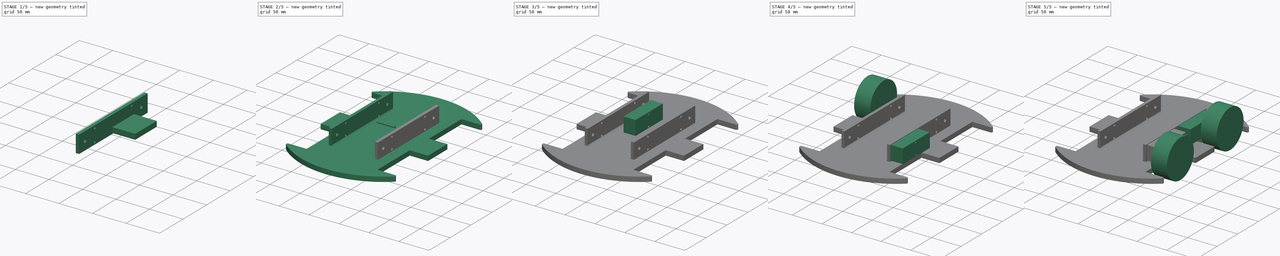
[diagram: build sequence overview — one tinted view per stage of 5, left to right]
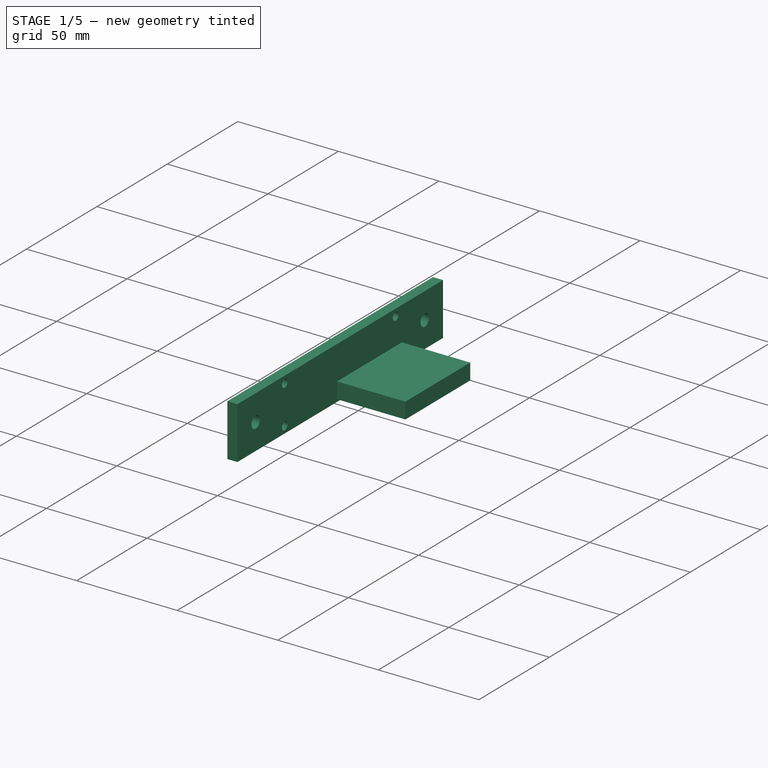
[diagram: stage 1 of 5 — iso view after this stage's code; geometry added in this stage tinted green]
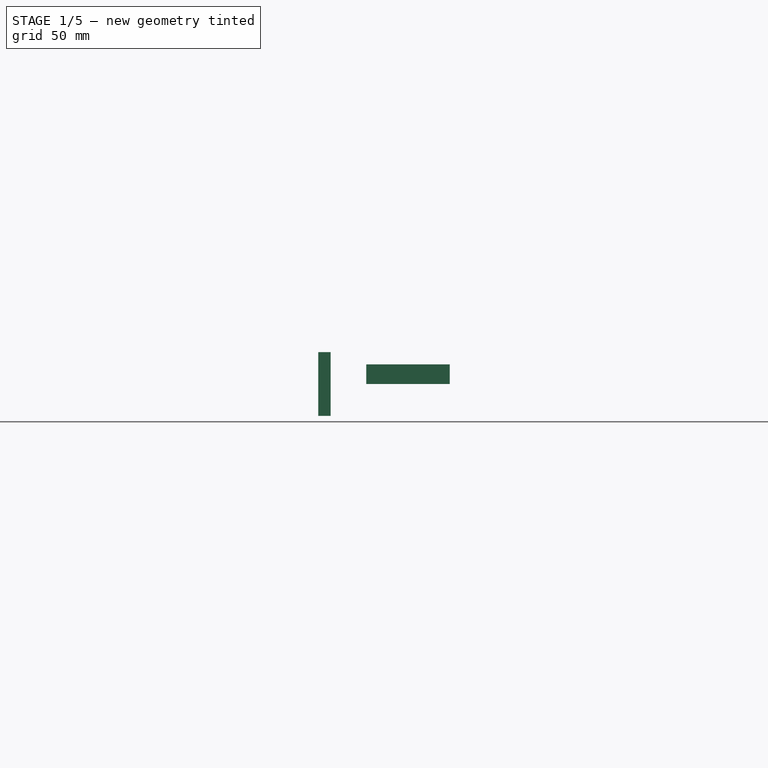
[diagram: stage 1 of 5 — front view after this stage's code; geometry added in this stage tinted green]
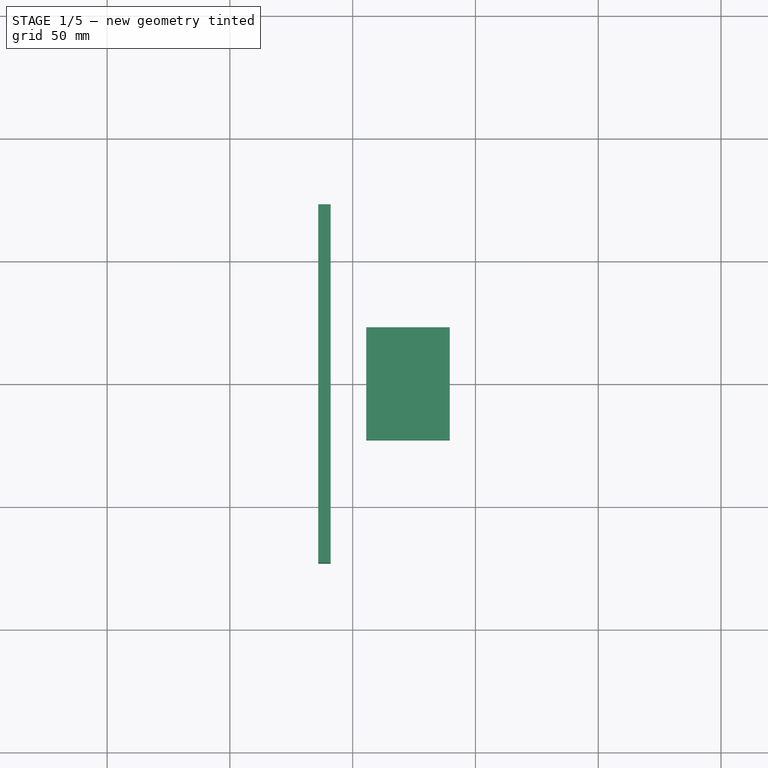
[diagram: stage 1 of 5 — top view after this stage's code; geometry added in this stage tinted green]
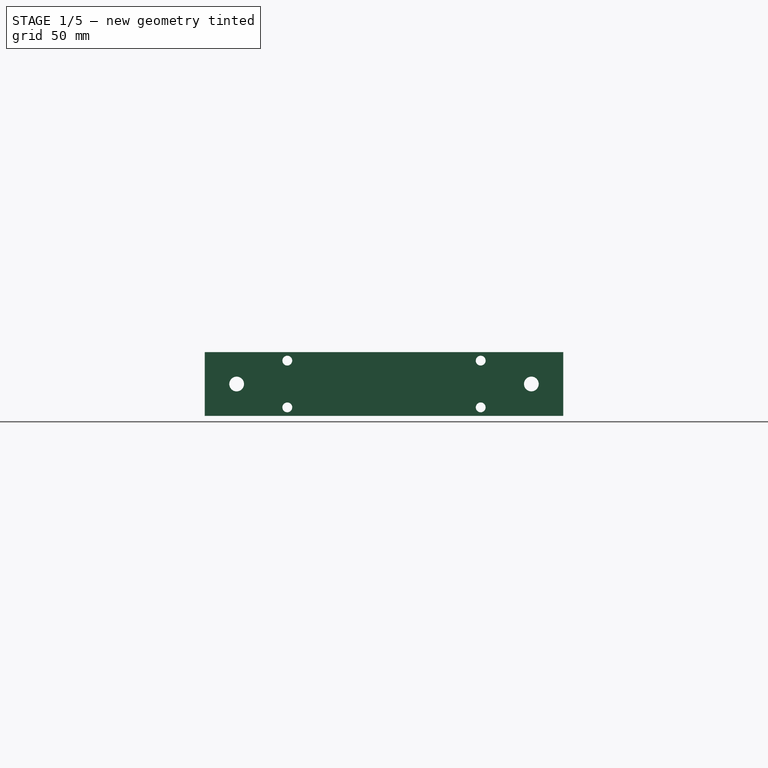
[diagram: stage 1 of 5 — right view after this stage's code; geometry added in this stage tinted green]
FCSTD DOCUMENT  (FreeCAD 0.19R24291 (Git))
Label: chasis
License: All rights reserved
LicenseURL: http://en.wikipedia.org/wiki/All_rights_reserved
objects: Part::Mirroring×9, Sketcher::SketchObject×4, Part::Cylinder×3, Part::MultiFuse×3, Part::Extrusion×3, Part::Cut×2, Part::Box×1, Part::Chamfer×1
note: 26 computed .brp shape members not serialized (recipe doc carries the construction recipe); baked Part::Feature solids carry a one-line shape summary decoded from their .brp

FEATURE [Sketcher::SketchObject] Sketch002  label="sk_rectangulo_medio"
  FullyConstrained = false
  sketch-geometry (4):
    g0: LineSegment StartX=-89.5216 StartY=23 StartZ=0 EndX=-55.5216 EndY=23 EndZ=0
    g1: LineSegment StartX=-55.5216 StartY=23 StartZ=0 EndX=-55.5216 EndY=-23 EndZ=0
    g2: LineSegment StartX=-55.5216 StartY=-23 StartZ=0 EndX=-89.5216 EndY=-23 EndZ=0
    g3: LineSegment StartX=-89.5216 StartY=-23 StartZ=0 EndX=-89.5216 EndY=23 EndZ=0
  constraints (10):
    c: Coincident(g0,g1)
    c: Coincident(g1,g2)
    c: Coincident(g2,g3)
    c: Coincident(g3,g0)
    c: Horizontal(g0)
    c: Horizontal(g2)
    c: Vertical(g1)
    c: DistanceX(g0,g0) = 34
    c: Symmetric(g0,g2,g-1)
    c: DistanceY(g3,g3) = 46
FEATURE [Part::Extrusion] Extrude001  label="rectangulo_medio"
  Base = -> Sketch002
  Dir = (0,0,1)
  DirMode = 2
  FaceMakerClass = Part::FaceMakerBullseye
  LengthFwd = 8
  LengthRev = 0
  Solid = true
  Symmetric = false
FEATURE [Part::Mirroring] Part__Mirroring007  label="rectangulo_medio (Mirror #8)"
  Base = (0,0,0)
  Normal = (1,0,0)
  Source = -> Extrude001
FEATURE [Sketcher::SketchObject] Sketch003  label="sk_Union_motor_chasis"
  FullyConstrained = true
  Placement = pos=(0,0,0) rot=(0.57735,0.57735,0.57735;2.0944rad)
  sketch-geometry (10):
    g0: LineSegment StartX=-73 StartY=13 StartZ=0 EndX=73 EndY=13 EndZ=0
    g1: LineSegment StartX=73 StartY=13 StartZ=0 EndX=73 EndY=-13 EndZ=0
    g2: LineSegment StartX=73 StartY=-13 StartZ=0 EndX=-73 EndY=-13 EndZ=0
    g3: LineSegment StartX=-73 StartY=-13 StartZ=0 EndX=-73 EndY=13 EndZ=0
    g4: Circle CenterX=-60.01 CenterY=0 CenterZ=0 NormalX=0 NormalY=0 NormalZ=1 AngleXU=0 Radius=3
    g5: Circle CenterX=-39.38 CenterY=9.52 CenterZ=0 NormalX=0 NormalY=0 NormalZ=1 AngleXU=0 Radius=2
    g6: Circle CenterX=-39.38 CenterY=-9.52 CenterZ=0 NormalX=0 NormalY=0 NormalZ=1 AngleXU=0 Radius=2
    g7: Circle CenterX=60.01 CenterY=0 CenterZ=0 NormalX=0 NormalY=0 NormalZ=1 AngleXU=0 Radius=3
    g8: Circle CenterX=39.38 CenterY=9.52 CenterZ=0 NormalX=0 NormalY=0 NormalZ=1 AngleXU=0 Radius=2
    g9: Circle CenterX=39.38 CenterY=-9.52 CenterZ=0 NormalX=0 NormalY=0 NormalZ=1 AngleXU=0 Radius=2
  constraints (27):
    c: Coincident(g0,g1)
    c: Coincident(g1,g2)
    c: Coincident(g2,g3)
    c: Coincident(g3,g0)
    c: Horizontal(g0)
    c: Horizontal(g2)
    c: Vertical(g1)
    c: Vertical(g3)
    c: DistanceY(g3,g3) = 26
    c: DistanceX(g0,g0) = 146
    c: Symmetric(g2,g0,g-1)
    c: PointOnObject(g4,g-1)
    c: Radius(g4) = 3
    c: Distance(g4,g3) = 12.99
    c: Radius(g5) = 2
    c: Radius(g6) = 2
    c: Symmetric(g5,g6,g-1)
    c: PointOnObject(g7,g-1)
    c: Radius(g7) = 3
    c: Distance(g7,g1) = 12.99
    c: Radius(g8) = 2
    c: Radius(g9) = 2
    c: Symmetric(g8,g9,g-1)
    c: DistanceY(g9,g8) = 19.04
    c: DistanceY(g6,g5) = 19.04
    c: Distance(g8,g1) = 33.62
    c: Distance(g5,g3) = 33.62
FEATURE [Part::Extrusion] Extrude002  label="Union_chasis_base"
  Base = -> Sketch003
  Dir = (1,0,0)
  DirMode = 2
  FaceMakerClass = Part::FaceMakerBullseye
  LengthFwd = 5
  LengthRev = 0
  Placement = pos=(-41,0,0) rot=(0,0,1;0rad)
  Solid = true
  Symmetric = false
FEATURE [Part::Mirroring] Part__Mirroring008  label="Union_chasis_base (Mirror #9)"
  Base = (0,0,0)
  Normal = (1,0,0)
  Source = -> Extrude002
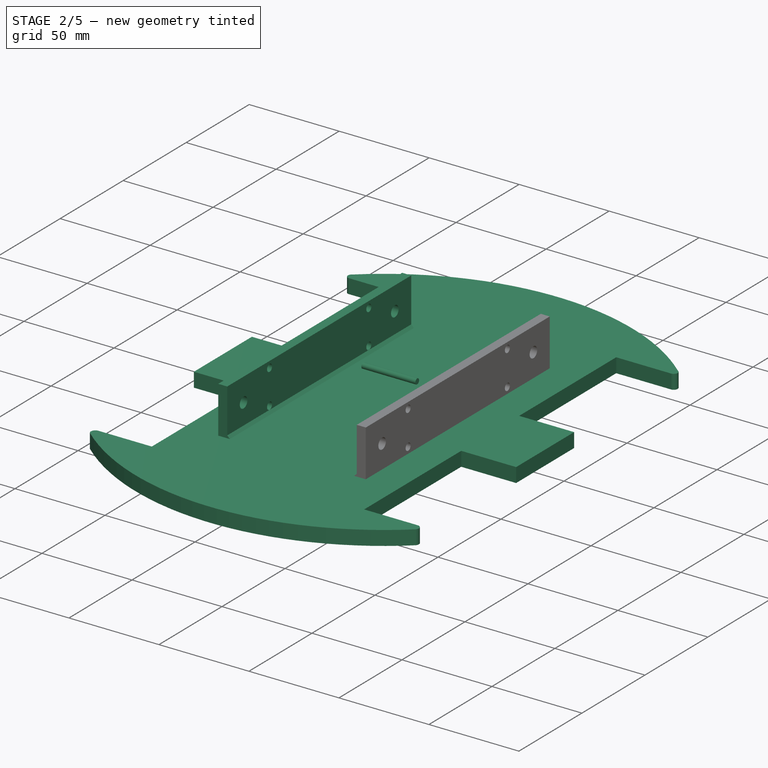
[diagram: stage 2 of 5 — iso view after this stage's code; geometry added in this stage tinted green]
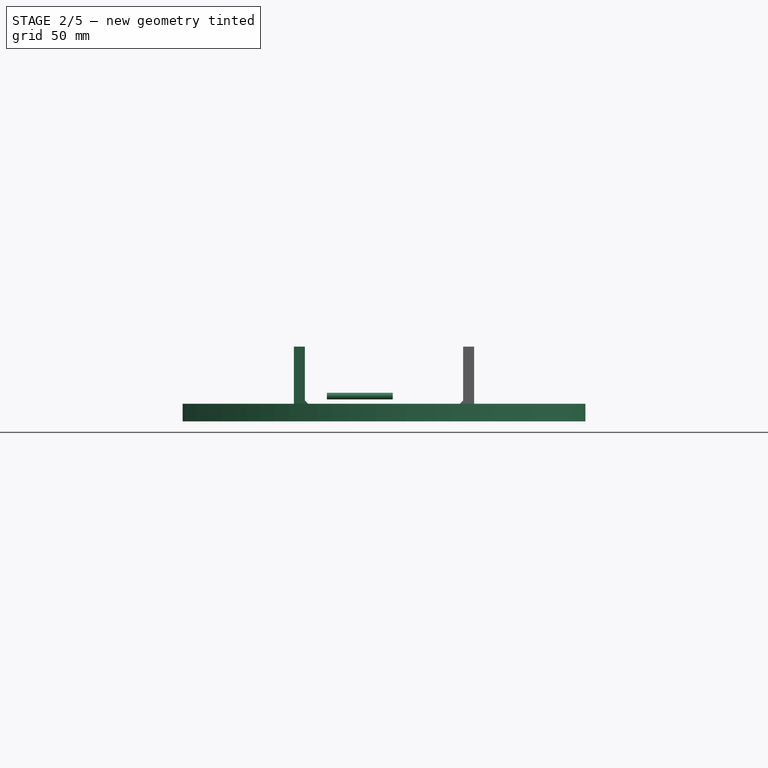
[diagram: stage 2 of 5 — front view after this stage's code; geometry added in this stage tinted green]
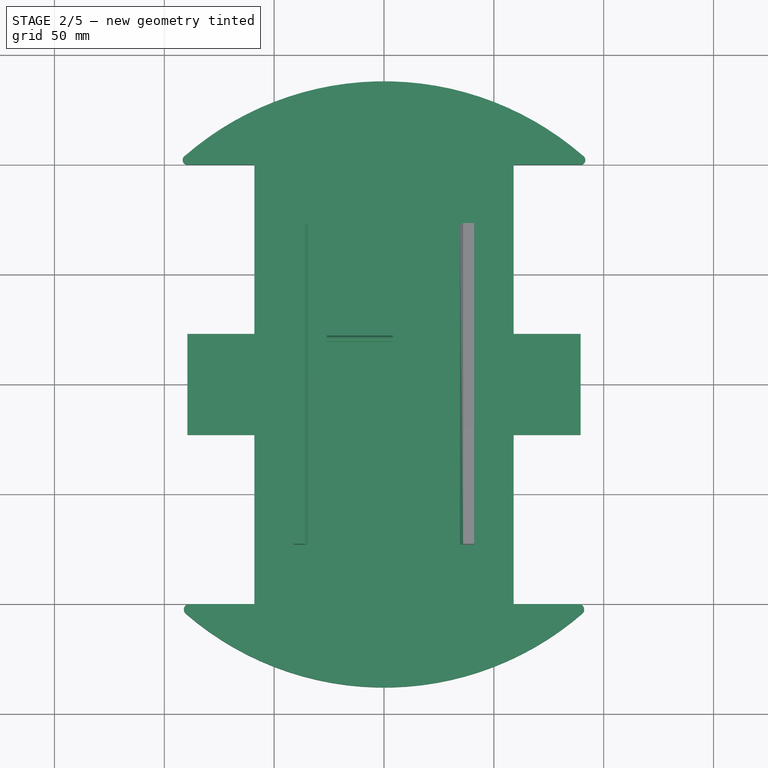
[diagram: stage 2 of 5 — top view after this stage's code; geometry added in this stage tinted green]
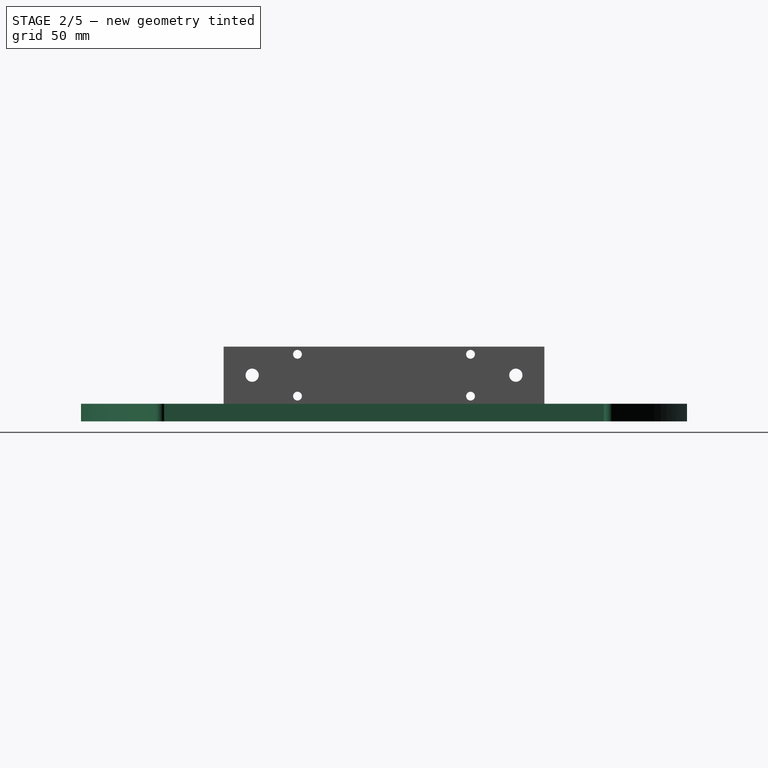
[diagram: stage 2 of 5 — right view after this stage's code; geometry added in this stage tinted green]
FEATURE [Part::Cylinder] Cylinder002
  Angle = 360
  AttacherType = Attacher::AttachEngine3D
  Height = 30
  Placement = pos=(4,20.63,-9.5) rot=(0,-1,0;1.5708rad)
  Radius = 1.5
FEATURE [Sketcher::SketchObject] Sketch  label="sk_chasis_abajo"
  FullyConstrained = true
  sketch-geometry (13):
    g0: LineSegment StartX=-61.12 StartY=99.5493 StartZ=0 EndX=-89.12 EndY=99.5493 EndZ=0
    g1: LineSegment StartX=61.12 StartY=100.451 StartZ=0 EndX=89.12 EndY=100.451 EndZ=0
    g2: ArcOfCircle CenterX=0 CenterY=0 CenterZ=0 NormalX=0 NormalY=0 NormalZ=1 AngleXU=0 Radius=138.3 StartAngle=0.867259 EndAngle=2.28769
    g3: ArcOfCircle CenterX=-89.3284 CenterY=102.151 CenterZ=0 NormalX=0 NormalY=0 NormalZ=1 AngleXU=0 Radius=2.61 StartAngle=2.20262 EndAngle=4.79234
    g4: ArcOfCircle CenterX=88.5851 CenterY=103.006 CenterZ=0 NormalX=0 NormalY=0 NormalZ=1 AngleXU=0 Radius=2.61 StartAngle=4.91881 EndAngle=7.50853
    g5: LineSegment StartX=-60.56 StartY=-100.451 StartZ=0 EndX=-88.56 EndY=-100.451 EndZ=0
    g6: LineSegment StartX=61.12 StartY=-99.5493 StartZ=0 EndX=89.12 EndY=-99.5493 EndZ=0
    g7: ArcOfCircle CenterX=0 CenterY=0 CenterZ=0 NormalX=0 NormalY=0 NormalZ=1 AngleXU=0 Radius=138.3 StartAngle=4.00781 EndAngle=5.42929
    g8: ArcOfCircle CenterX=89.3284 CenterY=-102.151 CenterZ=0 NormalX=0 NormalY=0 NormalZ=1 AngleXU=0 Radius=2.61 StartAngle=5.34421 EndAngle=7.93393
    g9: LineSegment StartX=-89.12 StartY=99.5493 StartZ=0 EndX=-61.12 EndY=99.5493 EndZ=0
    g10: ArcOfCircle CenterX=-88.3729 CenterY=-103.054 CenterZ=0 NormalX=0 NormalY=0 NormalZ=1 AngleXU=0 Radius=2.61 StartAngle=1.64256 EndAngle=4.23228
    g11: LineSegment StartX=-61.12 StartY=99.5493 StartZ=0 EndX=-60.56 EndY=-100.451 EndZ=0
    g12: LineSegment StartX=61.12 StartY=-99.5493 StartZ=0 EndX=61.12 EndY=100.451 EndZ=0
  constraints (41):
    c: DistanceX(g0,g1) = 122.24
    c: Symmetric(g0,g6,g-1)
    c: Horizontal(g0)
    c: Horizontal(g1)
    c: Coincident(g2,g-1)
    c: Coincident(g3,g2)
    c: Coincident(g3,g0)
    c: Equal(g0,g1)
    c: Coincident(g4,g2)
    c: Coincident(g4,g1)
    c: Horizontal(g5)
    c: Horizontal(g6)
    c: Equal(g0,g5)
    c: Coincident(g7,g2)
    c: DistanceX(g5,g6) = 121.68
    c: Coincident(g8,g6)
    c: Coincident(g8,g7)
    c: DistanceX(g0,g0) = 28
    c: Coincident(g9,g0)
    c: Coincident(g9,g0)
    c: Radius(g8) = 2.61
    c: Angle(g8) = 2.58972
    c: Radius(g10) = 2.61
    c: Angle(g10) = 2.58972
    c: Coincident(g10,g5)
    c: Coincident(g12,g6)
    c: Coincident(g12,g1)
    c: Vertical(g12)
    c: Equal(g12,g11)
    c: Coincident(g10,g7)
    c: Radius(g3) = 2.61
    c: Angle(g3) = 2.58972
    c: Angle(g4) = 2.58972
    c: Radius(g4) = 2.61
    c: Coincident(g0,g11)
    c: Coincident(g11,g5)
    c: Equal(g5,g6)
    c: Radius(g7) = 138.3
    c: Radius(g2) = 138.3
    c: DistanceY(g11,g11) = 200
    c: Distance(g2,g7) = 209.63
FEATURE [Sketcher::SketchObject] Sketch001  label="sk_chasis_abajo2"
  FullyConstrained = true
  sketch-geometry (12):
    g0: LineSegment StartX=59 StartY=100 StartZ=0 EndX=59 EndY=-100 EndZ=0
    g1: LineSegment StartX=-59 StartY=-100 StartZ=0 EndX=-59 EndY=100 EndZ=0
    g2: LineSegment StartX=-59 StartY=100 StartZ=0 EndX=-89 EndY=100 EndZ=0
    g3: LineSegment StartX=59 StartY=100 StartZ=0 EndX=89 EndY=100 EndZ=0
    g4: LineSegment StartX=-59 StartY=-100 StartZ=0 EndX=-89 EndY=-100 EndZ=0
    g5: LineSegment StartX=59 StartY=-100 StartZ=0 EndX=89 EndY=-100 EndZ=0
    g6: ArcOfCircle CenterX=0 CenterY=0 CenterZ=0 NormalX=0 NormalY=0 NormalZ=1 AngleXU=0 Radius=137.96 StartAngle=0.856067 EndAngle=2.28553
    g7: ArcOfCircle CenterX=0 CenterY=0 CenterZ=0 NormalX=0 NormalY=0 NormalZ=1 AngleXU=0 Radius=137.96 StartAngle=3.9976 EndAngle=5.42718
    g8: ArcOfCircle CenterX=-89.3977 CenterY=102.204 CenterZ=0 NormalX=0 NormalY=0 NormalZ=1 AngleXU=0 Radius=2.24 StartAngle=2.04513 EndAngle=4.89088
    g9: ArcOfCircle CenterX=89.3977 CenterY=102.204 CenterZ=0 NormalX=0 NormalY=0 NormalZ=1 AngleXU=0 Radius=2.24 StartAngle=4.53389 EndAngle=7.37965
    g10: ArcOfCircle CenterX=-88.6143 CenterY=-102.47 CenterZ=0 NormalX=0 NormalY=0 NormalZ=1 AngleXU=0 Radius=2.5 StartAngle=1.72569 EndAngle=3.90124
    g11: ArcOfCircle CenterX=88.6143 CenterY=-102.47 CenterZ=0 NormalX=0 NormalY=0 NormalZ=1 AngleXU=0 Radius=2.5 StartAngle=5.52353 EndAngle=7.69909
  constraints (38):
    c: Vertical(g0)
    c: Symmetric(g1,g0,g-1)
    c: DistanceY(g1,g1) = 200
    c: Horizontal(g2)
    c: DistanceX(g2,g2) = 30
    c: Horizontal(g3)
    c: Horizontal(g4)
    c: Coincident(g5,g0)
    c: Horizontal(g5)
    c: Equal(g2,g4)
    c: Coincident(g6,g-1)
    c: Equal(g6,g7)
    c: Coincident(g6,g7)
    c: Coincident(g8,g2)
    c: Coincident(g8,g6)
    c: Coincident(g9,g3)
    c: Coincident(g9,g6)
    c: Radius(g6) = 137.96
    c: Coincident(g10,g4)
    c: Coincident(g10,g7)
    c: Equal(g2,g5)
    c: Coincident(g11,g5)
    c: Coincident(g11,g7)
    c: Radius(g11) = 2.5
    c: Angle(g11) = 2.17555
    c: Equal(g2,g3)
    c: DistanceX(g1,g0) = 118
    c: Equal(g1,g0)
    c: Coincident(g1,g4)
    c: Coincident(g1,g2)
    c: Coincident(g0,g3)
    c: Symmetric(g1,g1,g-1)
    c: Radius(g10) = 2.5
    c: Angle(g10) = 2.17555
    c: Radius(g8) = 2.24
    c: Angle(g8) = 2.84576
    c: Radius(g9) = 2.24
    c: Angle(g9) = 2.84576
FEATURE [Part::Extrusion] Extrude  label="chasis_abajo"
  Base = -> Sketch001
  Dir = (0,0,1)
  DirMode = 2
  FaceMakerClass = Part::FaceMakerBullseye
  LengthFwd = 8
  LengthRev = 0
  Solid = true
  Symmetric = false
FEATURE [Part::MultiFuse] Fusion001  label="chasis_completo"
  Placement = pos=(0,0,-21) rot=(0,0,1;0rad)
  Refine = true
  Shapes = -> [Extrude001,Part__Mirroring007,Extrude]
FEATURE [Part::MultiFuse] Fusion002  label="chasis_motor"
  Refine = true
  Shapes = -> [Extrude002,Part__Mirroring008,Fusion001]
FEATURE [Part::Chamfer] Chamfer
  Base = -> Fusion002
  Edges = 2 edges r=1.45: [Edge46,Edge49]
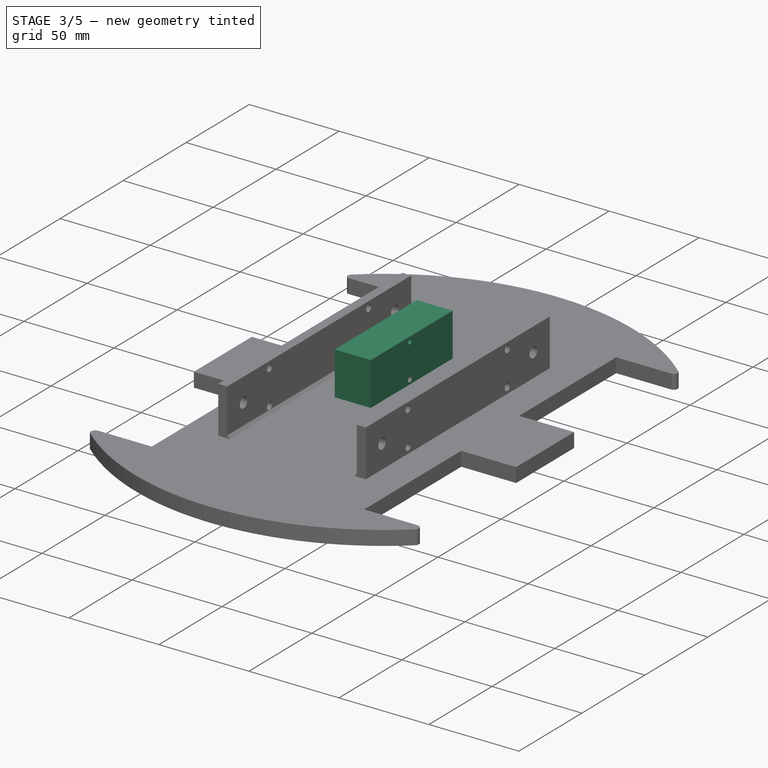
[diagram: stage 3 of 5 — iso view after this stage's code; geometry added in this stage tinted green]
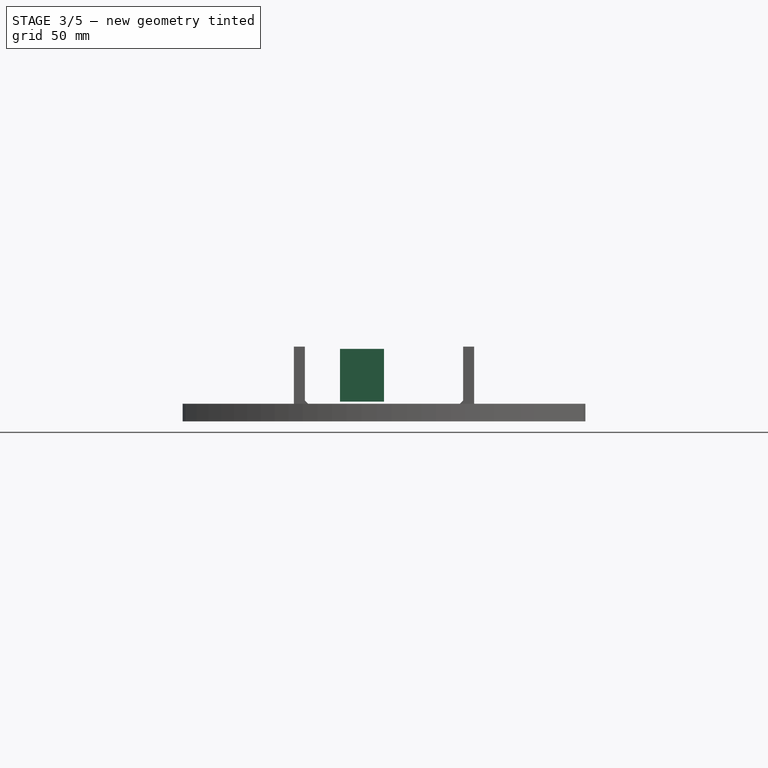
[diagram: stage 3 of 5 — front view after this stage's code; geometry added in this stage tinted green]
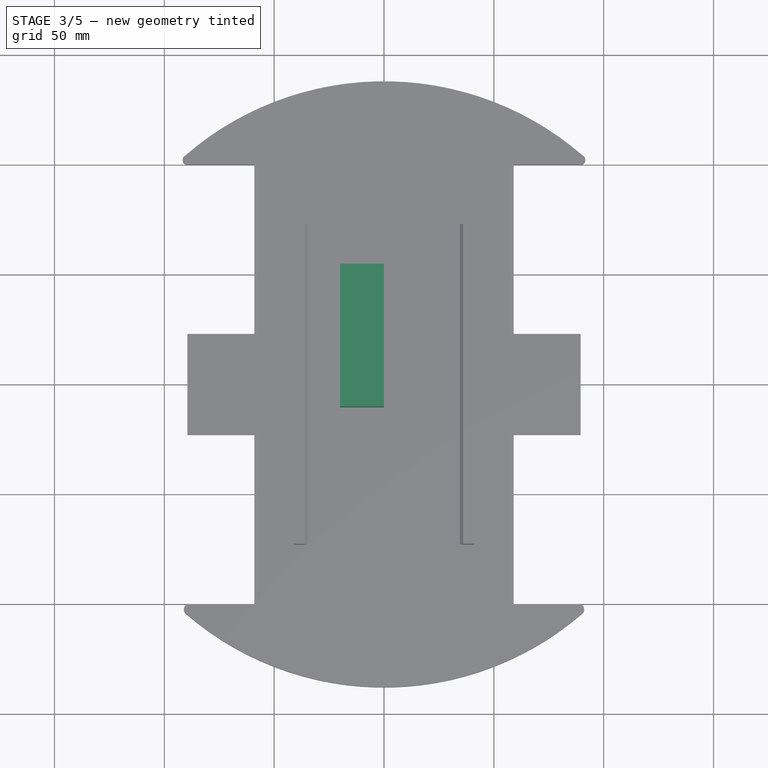
[diagram: stage 3 of 5 — top view after this stage's code; geometry added in this stage tinted green]
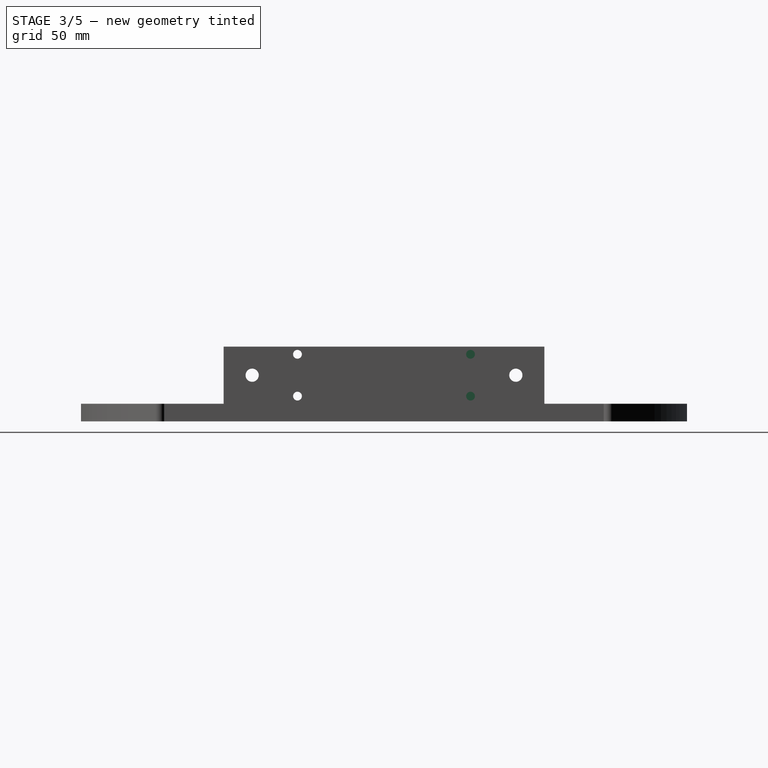
[diagram: stage 3 of 5 — right view after this stage's code; geometry added in this stage tinted green]
FEATURE [Part::Box] Box  label="Cube"
  AttacherType = Attacher::AttachEngine3D
  Height = 24
  Length = 20
  Placement = pos=(-19,-10.5,-12) rot=(0,0,1;0rad)
  Width = 65
FEATURE [Part::Mirroring] Part__Mirroring  label="Cylinder002 (Mirror #1)"
  Base = (0,0,0)
  Normal = (0,0,1)
  Source = -> Cylinder002
FEATURE [Part::Cut] Cut
  Base = -> Box
  Refine = true
  Tool = -> Cylinder002
FEATURE [Part::Cut] Cut001
  Base = -> Cut
  Placement = pos=(-1,0,0) rot=(0,0,1;0rad)
  Refine = true
  Tool = -> Part__Mirroring
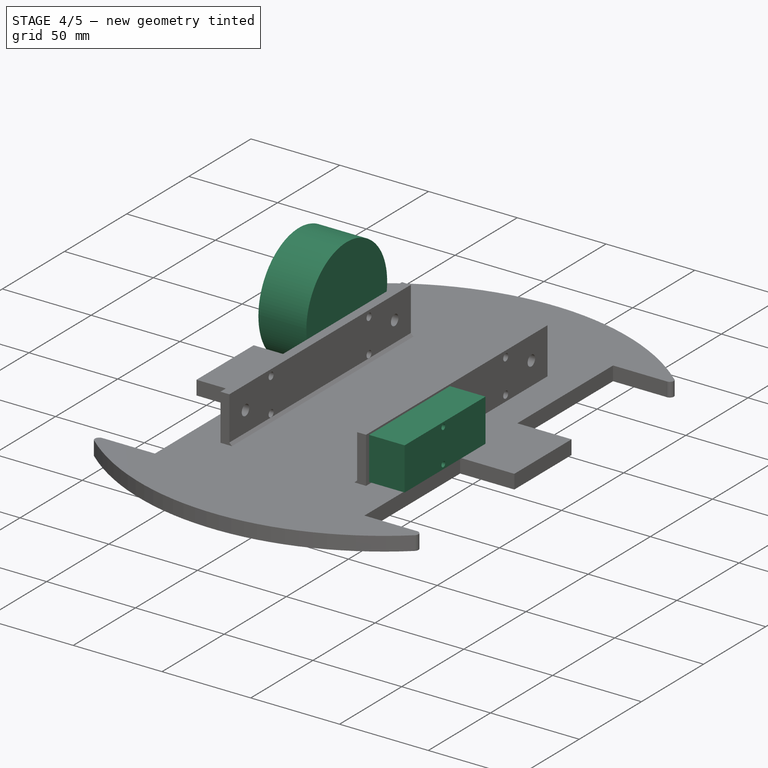
[diagram: stage 4 of 5 — iso view after this stage's code; geometry added in this stage tinted green]
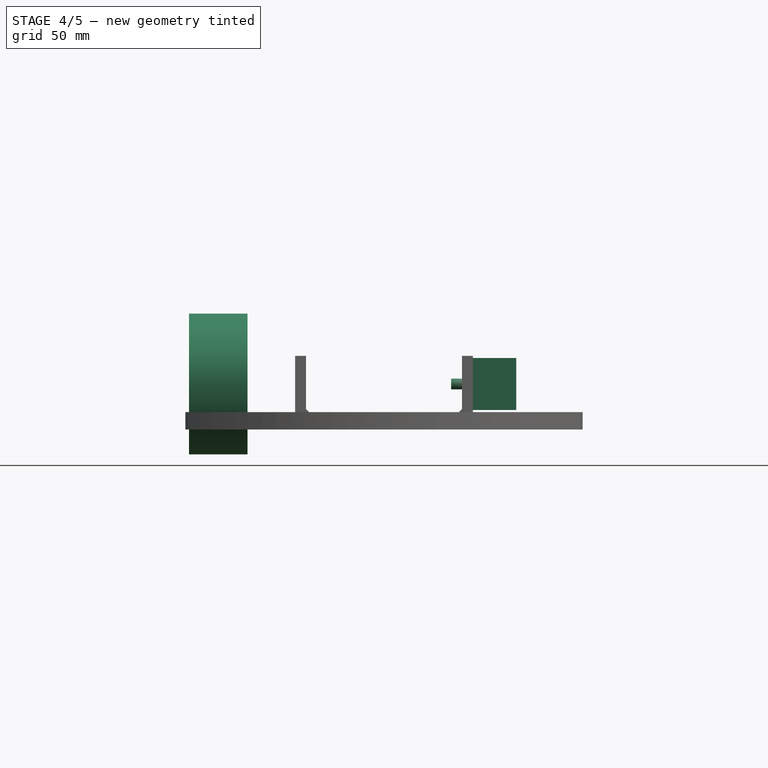
[diagram: stage 4 of 5 — front view after this stage's code; geometry added in this stage tinted green]
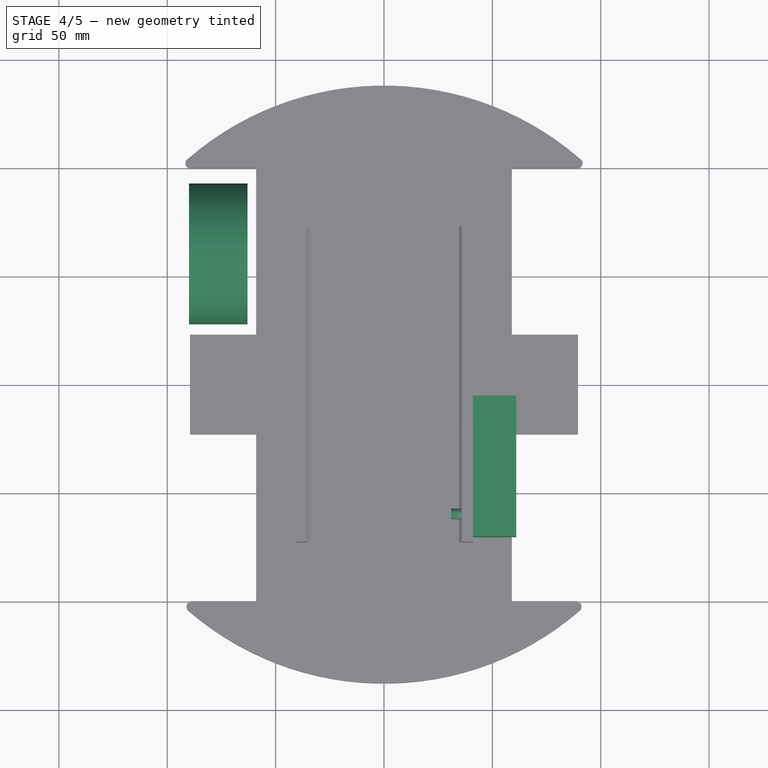
[diagram: stage 4 of 5 — top view after this stage's code; geometry added in this stage tinted green]
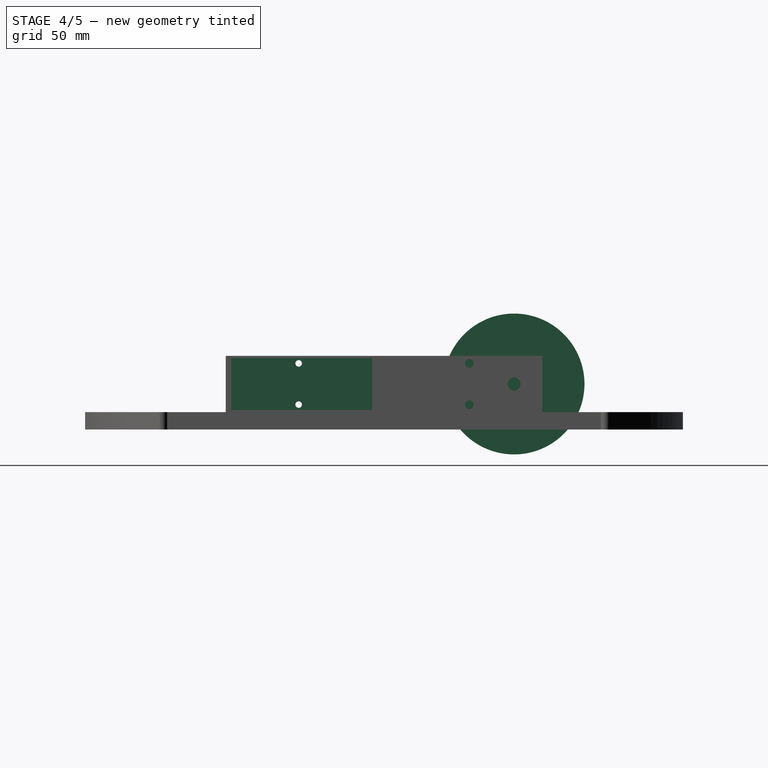
[diagram: stage 4 of 5 — right view after this stage's code; geometry added in this stage tinted green]
FEATURE [Part::Cylinder] Cylinder  label="Neumatico"
  Angle = 360
  AttacherType = Attacher::AttachEngine3D
  Height = 27
  Placement = pos=(-90,60,-2.3e-14) rot=(0,1,0;1.5708rad)
  Radius = 32.5
FEATURE [Part::Cylinder] Cylinder001  label="Cylinder"
  Angle = 360
  AttacherType = Attacher::AttachEngine3D
  Height = 10
  Placement = pos=(-20,0,1e-15) rot=(0,-1,0;1.5708rad)
  Radius = 2.5
FEATURE [Part::MultiFuse] Fusion  label="Motor"
  Placement = pos=(-61,60,8e-15) rot=(0,0,1;3.14159rad)
  Refine = true
  Shapes = -> [Cut001,Cylinder001]
FEATURE [Part::Mirroring] Part__Mirroring004  label="Motor (Mirror #5)"
  Base = (0,0,0)
  Normal = (0,1,0)
  Source = -> Fusion
FEATURE [Part::Mirroring] Part__Mirroring006  label="Motor (Mirror #7)"
  Base = (0,0,0)
  Normal = (1,0,0)
  Source = -> Part__Mirroring004
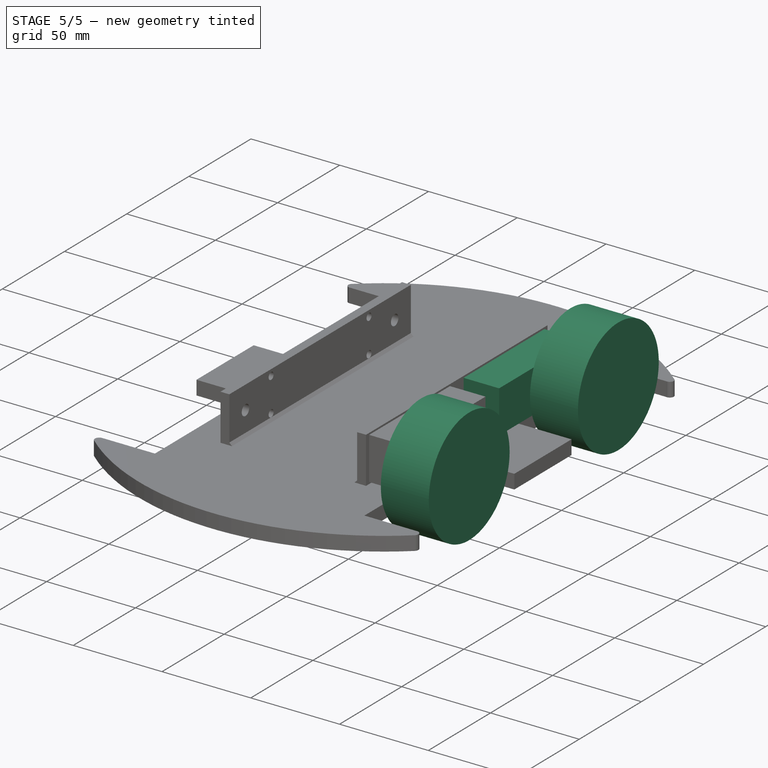
[diagram: stage 5 of 5 — iso view after this stage's code; geometry added in this stage tinted green]
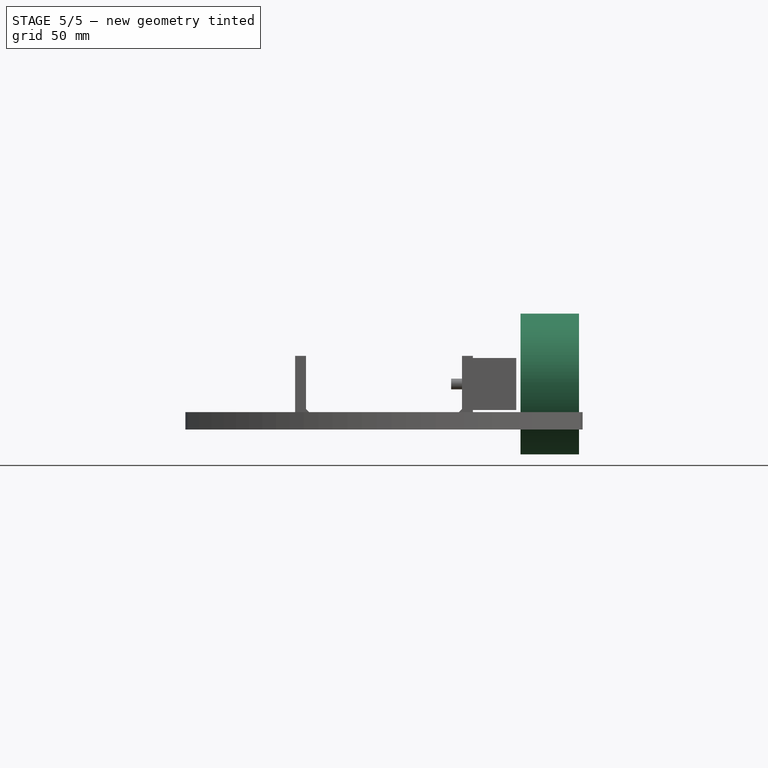
[diagram: stage 5 of 5 — front view after this stage's code; geometry added in this stage tinted green]
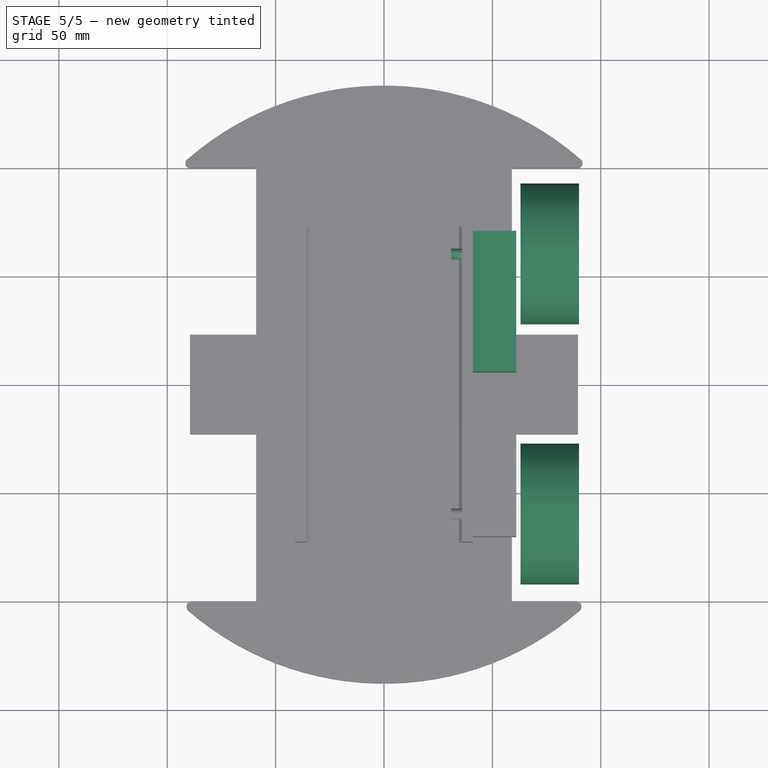
[diagram: stage 5 of 5 — top view after this stage's code; geometry added in this stage tinted green]
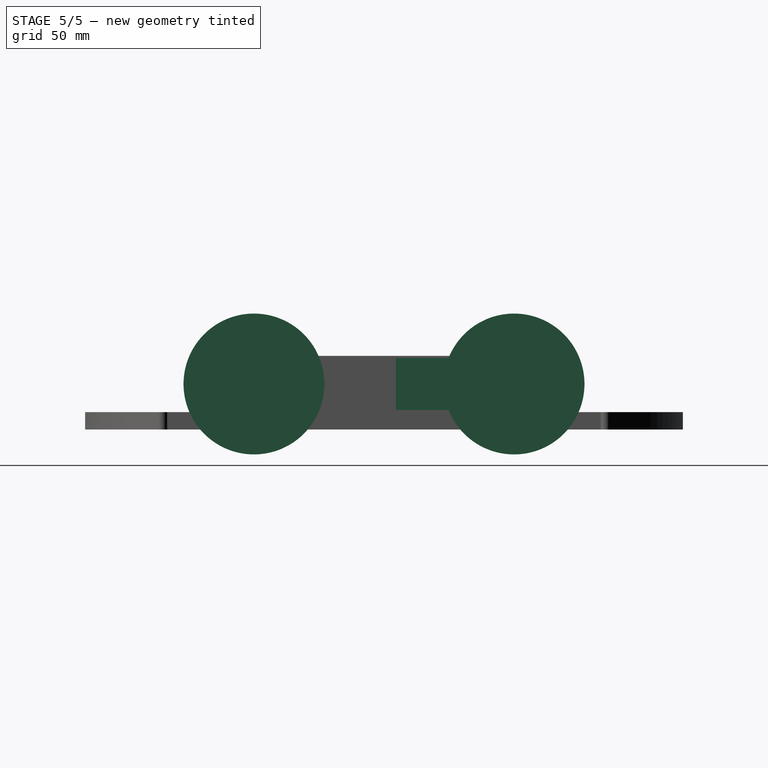
[diagram: stage 5 of 5 — right view after this stage's code; geometry added in this stage tinted green]
FEATURE [Part::Mirroring] Part__Mirroring001  label="Neumatico (Mirror #2)"
  Base = (0,0,0)
  Normal = (1,0,0)
  Source = -> Cylinder
FEATURE [Part::Mirroring] Part__Mirroring002  label="Motor (Mirror #3)"
  Base = (0,0,0)
  Normal = (1,0,0)
  Source = -> Fusion
FEATURE [Part::Mirroring] Part__Mirroring003  label="Neumatico (Mirror #4)"
  Base = (0,0,0)
  Normal = (0,1,0)
  Source = -> Cylinder
FEATURE [Part::Mirroring] Part__Mirroring005  label="Neumatico (Mirror #6)"
  Base = (0,0,0)
  Normal = (1,0,0)
  Source = -> Part__Mirroring003
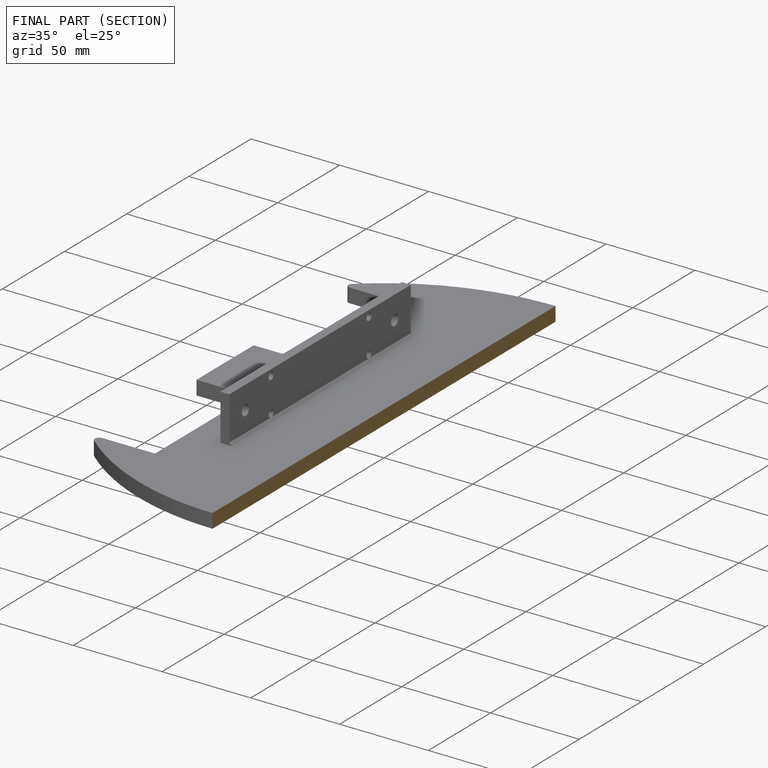
[diagram: finished part — half-section view (interior)]
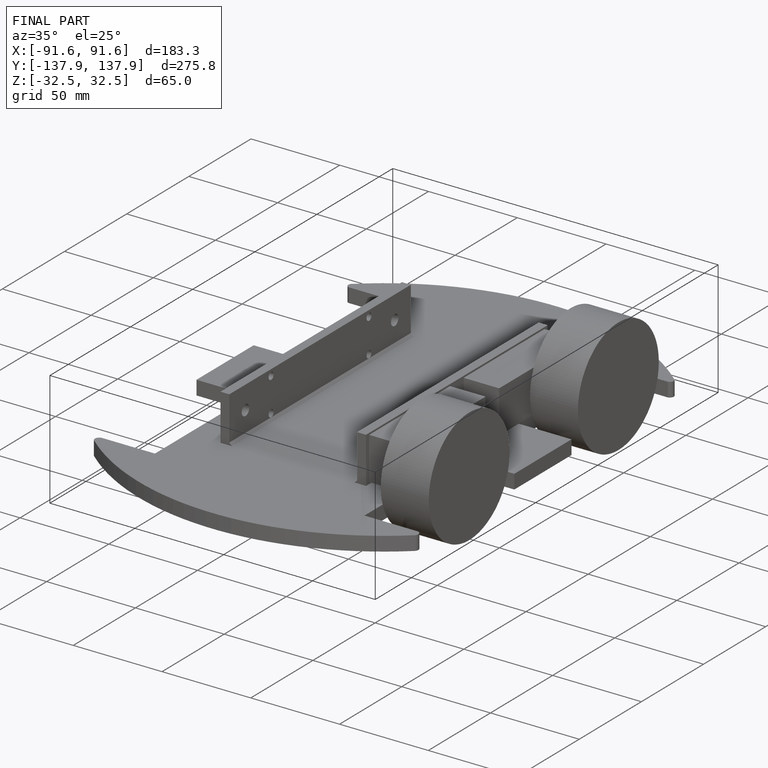
[diagram: finished part — iso view with bounding-box wireframe]
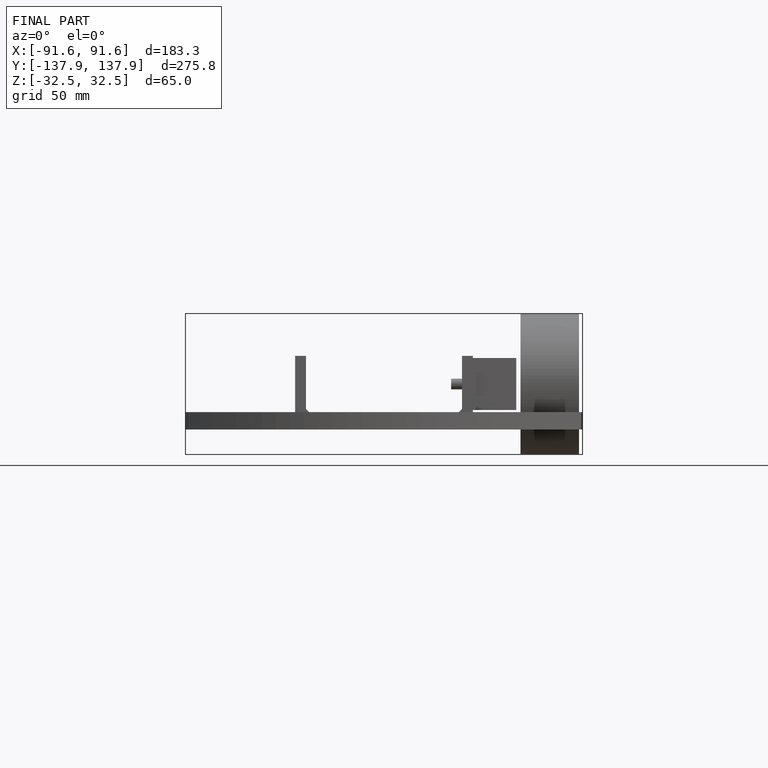
[diagram: finished part — front view with bounding-box wireframe]
